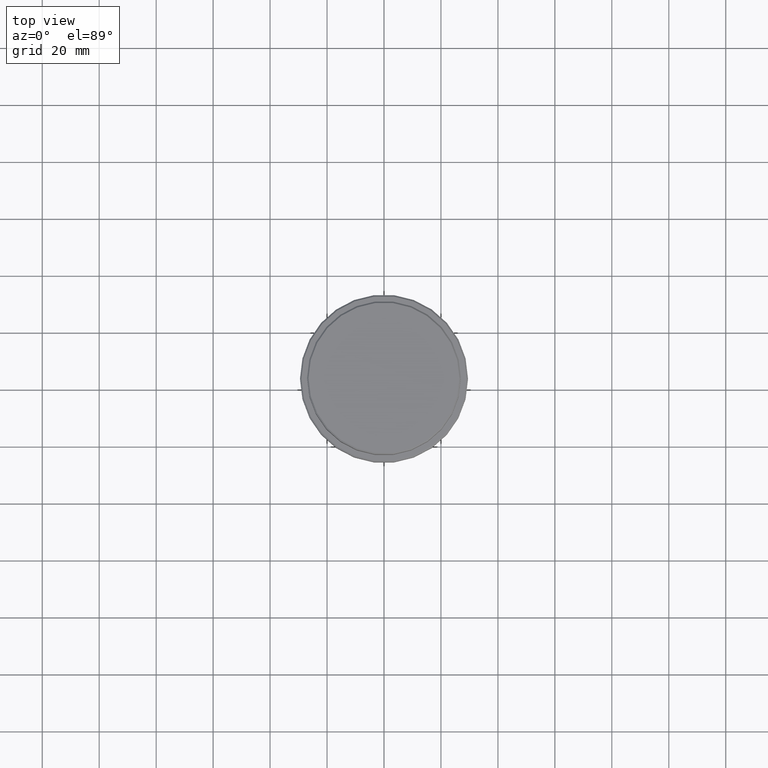
[diagram: clean part render]
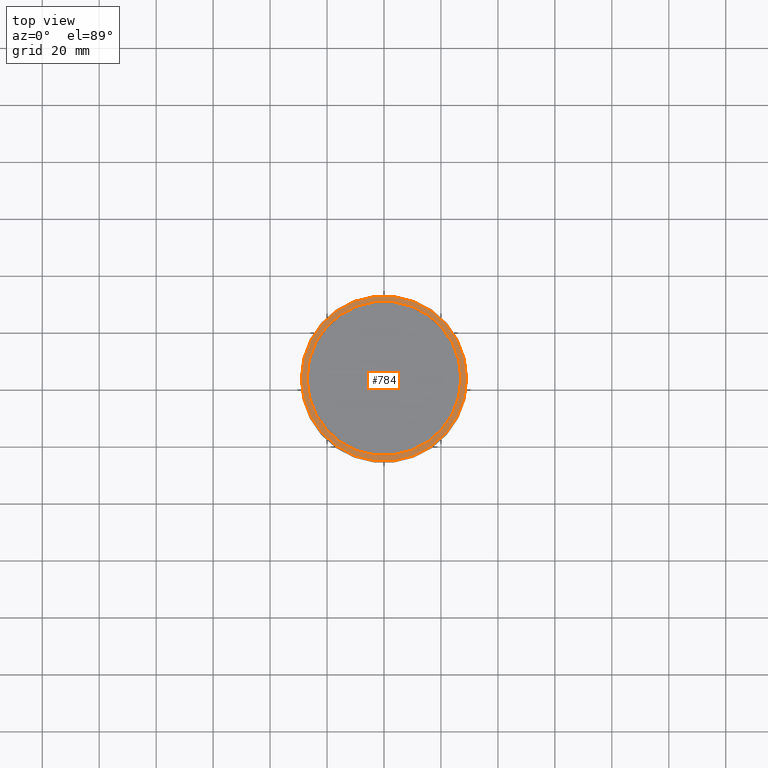
[diagram: same view with one face highlighted and labeled with its STEP entity id]
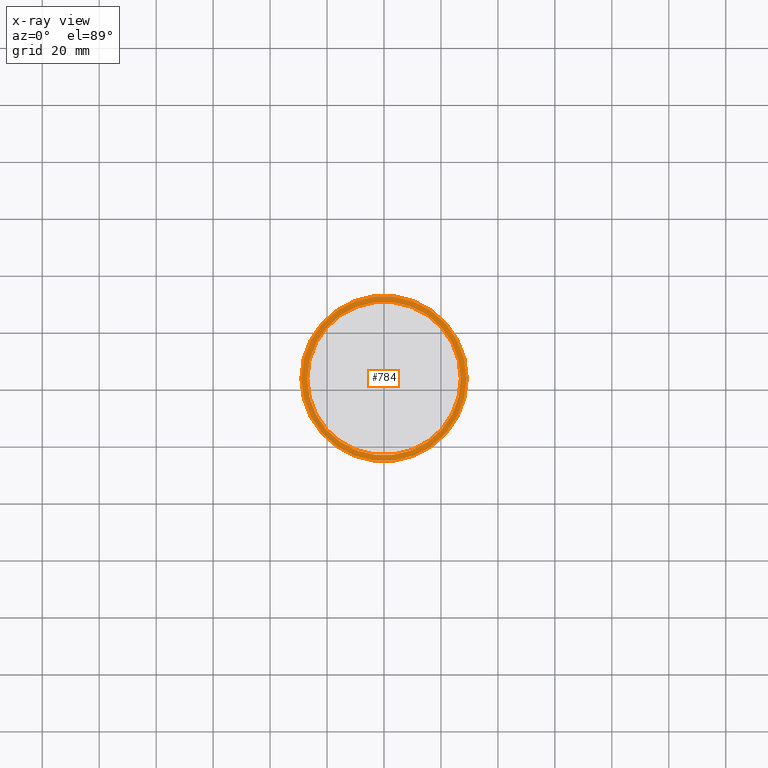
[diagram: x-ray of the same camera — body ghosted, the highlighted face saturated]
A machine part, top view. The second image highlights one B-rep face of the part: STEP entity #784.
The next image is the same camera in x-ray: the body ghosted, the highlighted face saturated — about 0% of this face is hidden behind the body in this view.
In plain terms, the highlighted planar face has unit normal (0, -0, 1).
Its self-contained STEP definition (entity closure, byte-faithful):
#48 = DIRECTION ( 'NONE',  ( -0.000000000000000000, -0.000000000000000000, 1.000000000000000000 ) ) ;
#89 = AXIS2_PLACEMENT_3D ( 'NONE', #104, #651, #666 ) ;
#104 = CARTESIAN_POINT ( 'NONE',  ( 0.000000000000000000, 0.000000000000000000, -12.00000000000000355 ) ) ;
#171 = DIRECTION ( 'NONE',  ( 1.000000000000000000, 0.000000000000000000, 0.000000000000000000 ) ) ;
#186 = EDGE_CURVE ( 'NONE', #506, #283, #1269, .T. ) ;
#206 = DIRECTION ( 'NONE',  ( 1.000000000000000000, 0.000000000000000000, 0.000000000000000000 ) ) ;
#283 = VERTEX_POINT ( 'NONE', #1224 ) ;
#329 = VERTEX_POINT ( 'NONE', #710 ) ;
#352 = EDGE_CURVE ( 'NONE', #283, #506, #586, .T. ) ;
#389 = CARTESIAN_POINT ( 'NONE',  ( 0.000000000000000000, 0.000000000000000000, -12.00000000000000355 ) ) ;
#402 = DIRECTION ( 'NONE',  ( 0.000000000000000000, -0.000000000000000000, 1.000000000000000000 ) ) ;
#479 = CARTESIAN_POINT ( 'NONE',  ( 0.000000000000000000, 0.000000000000000000, -12.00000000000000355 ) ) ;
#506 = VERTEX_POINT ( 'NONE', #685 ) ;
#508 = FACE_BOUND ( 'NONE', #1004, .T. ) ;
#586 = CIRCLE ( 'NONE', #823, 29.00000000000005329 ) ;
#601 = VERTEX_POINT ( 'NONE', #1229 ) ;
#605 = EDGE_CURVE ( 'NONE', #601, #329, #1016, .T. ) ;
#607 = DIRECTION ( 'NONE',  ( 1.000000000000000000, 0.000000000000000000, 0.000000000000000000 ) ) ;
#651 = DIRECTION ( 'NONE',  ( 0.000000000000000000, 0.000000000000000000, -1.000000000000000000 ) ) ;
#666 = DIRECTION ( 'NONE',  ( 1.000000000000000000, 0.000000000000000000, 0.000000000000000000 ) ) ;
#685 = CARTESIAN_POINT ( 'NONE',  ( -29.00000000000005329, 0.000000000000000000, -12.00000000000000355 ) ) ;
#701 = ORIENTED_EDGE ( 'NONE', *, *, #352, .T. ) ;
#706 = CARTESIAN_POINT ( 'NONE',  ( 0.000000000000000000, 0.000000000000000000, -12.00000000000000355 ) ) ;
#710 = CARTESIAN_POINT ( 'NONE',  ( -26.99999999999999645, 3.306546357697853339E-15, -12.00000000000000355 ) ) ;
#731 = FACE_OUTER_BOUND ( 'NONE', #794, .T. ) ;
#744 = DIRECTION ( 'NONE',  ( -0.000000000000000000, -0.000000000000000000, 1.000000000000000000 ) ) ;
#753 = ORIENTED_EDGE ( 'NONE', *, *, #605, .T. ) ;
#784 = ADVANCED_FACE ( 'NONE', ( #731, #508 ), #1274, .T. ) ;
#794 = EDGE_LOOP ( 'NONE', ( #1266, #701 ) ) ;
#804 = ORIENTED_EDGE ( 'NONE', *, *, #935, .T. ) ;
#823 = AXIS2_PLACEMENT_3D ( 'NONE', #389, #744, #607 ) ;
#882 = AXIS2_PLACEMENT_3D ( 'NONE', #479, #48, #1210 ) ;
#935 = EDGE_CURVE ( 'NONE', #329, #601, #1314, .T. ) ;
#1004 = EDGE_LOOP ( 'NONE', ( #753, #804 ) ) ;
#1016 = CIRCLE ( 'NONE', #1201, 26.99999999999999645 ) ;
#1034 = DIRECTION ( 'NONE',  ( 0.000000000000000000, 0.000000000000000000, -1.000000000000000000 ) ) ;
#1164 = CARTESIAN_POINT ( 'NONE',  ( 0.000000000000000000, 26.49999999999999645, -12.00000000000000355 ) ) ;
#1184 = AXIS2_PLACEMENT_3D ( 'NONE', #1164, #402, #206 ) ;
#1201 = AXIS2_PLACEMENT_3D ( 'NONE', #706, #1034, #171 ) ;
#1210 = DIRECTION ( 'NONE',  ( 1.000000000000000000, 0.000000000000000000, 0.000000000000000000 ) ) ;
#1224 = CARTESIAN_POINT ( 'NONE',  ( 29.00000000000005329, 3.582091887506010972E-15, -12.00000000000000355 ) ) ;
#1229 = CARTESIAN_POINT ( 'NONE',  ( 26.99999999999999645, 0.000000000000000000, -12.00000000000000355 ) ) ;
#1266 = ORIENTED_EDGE ( 'NONE', *, *, #186, .T. ) ;
#1269 = CIRCLE ( 'NONE', #882, 29.00000000000005329 ) ;
#1274 = PLANE ( 'NONE',  #1184 ) ;
#1314 = CIRCLE ( 'NONE', #89, 26.99999999999999645 ) ;